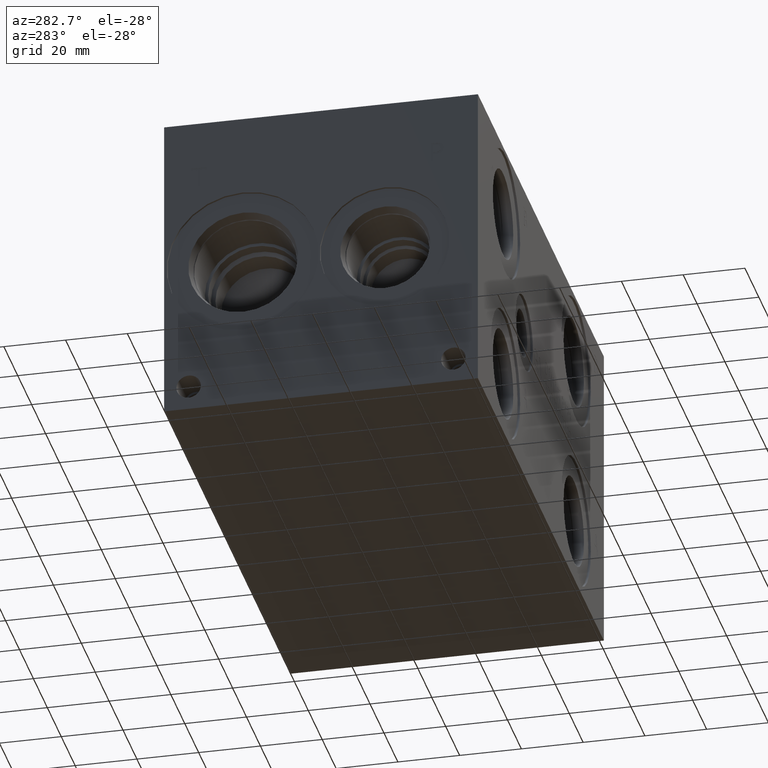
[diagram: clean part render]
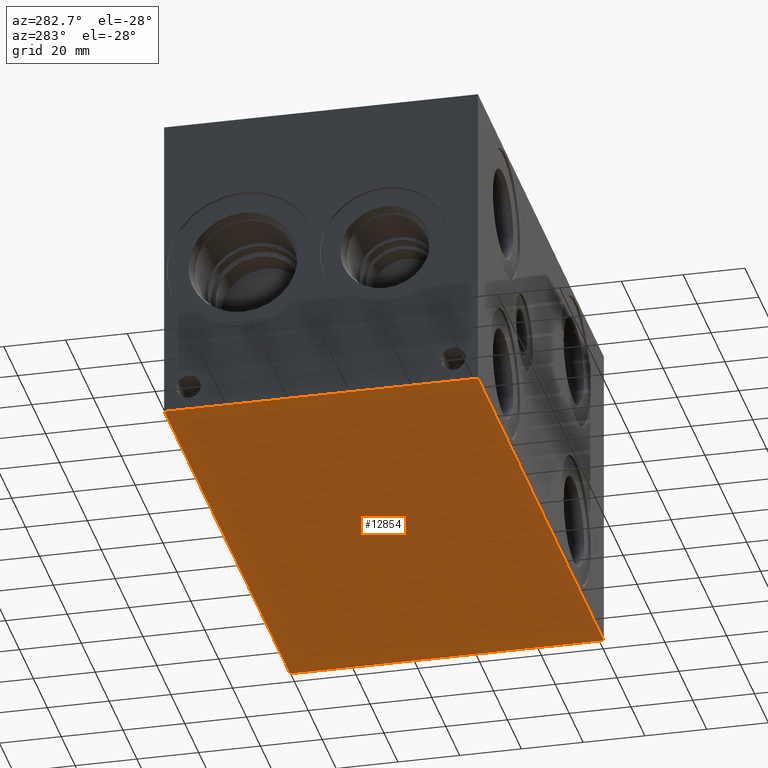
[diagram: same view with one face highlighted and labeled with its STEP entity id]
A machine part, auxiliary view. The second image highlights one B-rep face of the part: STEP entity #12854.
In plain terms, the highlighted planar face has unit normal (0, 0, 1).
Its self-contained STEP definition (entity closure, byte-faithful):
#1674=FACE_OUTER_BOUND('',#2443,.T.);
#2443=EDGE_LOOP('',(#11343,#11344,#11345,#11346));
#2512=LINE('',#16852,#3686);
#2753=LINE('',#17881,#3927);
#2812=LINE('',#18153,#3986);
#3616=LINE('',#22106,#4790);
#3686=VECTOR('',#13790,10.);
#3927=VECTOR('',#14071,10.);
#3986=VECTOR('',#14184,10.);
#4790=VECTOR('',#16462,10.);
#4856=VERTEX_POINT('',#16850);
#4857=VERTEX_POINT('',#16851);
#5185=VERTEX_POINT('',#17880);
#5243=VERTEX_POINT('',#18152);
#6112=EDGE_CURVE('',#4856,#4857,#2512,.T.);
#6457=EDGE_CURVE('',#4857,#5185,#2753,.T.);
#6540=EDGE_CURVE('',#5243,#4856,#2812,.T.);
#7791=EDGE_CURVE('',#5185,#5243,#3616,.T.);
#11343=ORIENTED_EDGE('',*,*,#6112,.F.);
#11344=ORIENTED_EDGE('',*,*,#6540,.F.);
#11345=ORIENTED_EDGE('',*,*,#7791,.F.);
#11346=ORIENTED_EDGE('',*,*,#6457,.F.);
#11719=PLANE('',#13677);
#12854=ADVANCED_FACE('',(#1674),#11719,.F.);
#13677=AXIS2_PLACEMENT_3D('',#22111,#16470,#16471);
#13790=DIRECTION('',(1.,0.,0.));
#14071=DIRECTION('',(0.,1.,0.));
#14184=DIRECTION('',(0.,-1.,0.));
#16462=DIRECTION('',(-1.,0.,0.));
#16470=DIRECTION('center_axis',(0.,0.,1.));
#16471=DIRECTION('ref_axis',(1.,0.,0.));
#16850=CARTESIAN_POINT('',(0.,0.,0.));
#16851=CARTESIAN_POINT('',(180.975,0.,0.));
#16852=CARTESIAN_POINT('',(0.,0.,0.));
#17880=CARTESIAN_POINT('',(180.975,101.6,0.));
#17881=CARTESIAN_POINT('',(180.975,0.,0.));
#18152=CARTESIAN_POINT('',(0.,101.6,0.));
#18153=CARTESIAN_POINT('',(0.,101.6,0.));
#22106=CARTESIAN_POINT('',(180.975,101.6,0.));
#22111=CARTESIAN_POINT('Origin',(90.4875,50.8,0.));